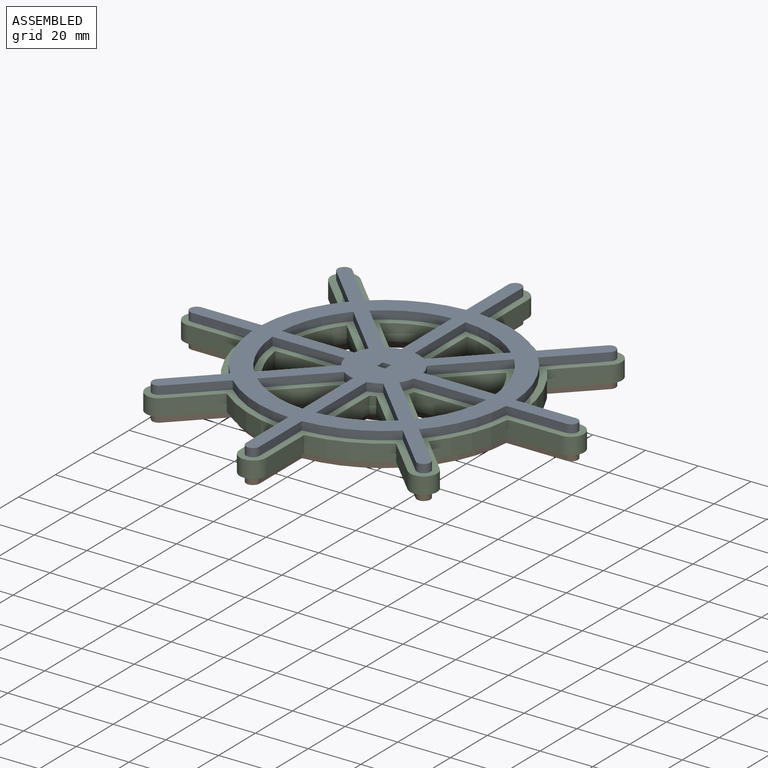
[diagram: assembled view]
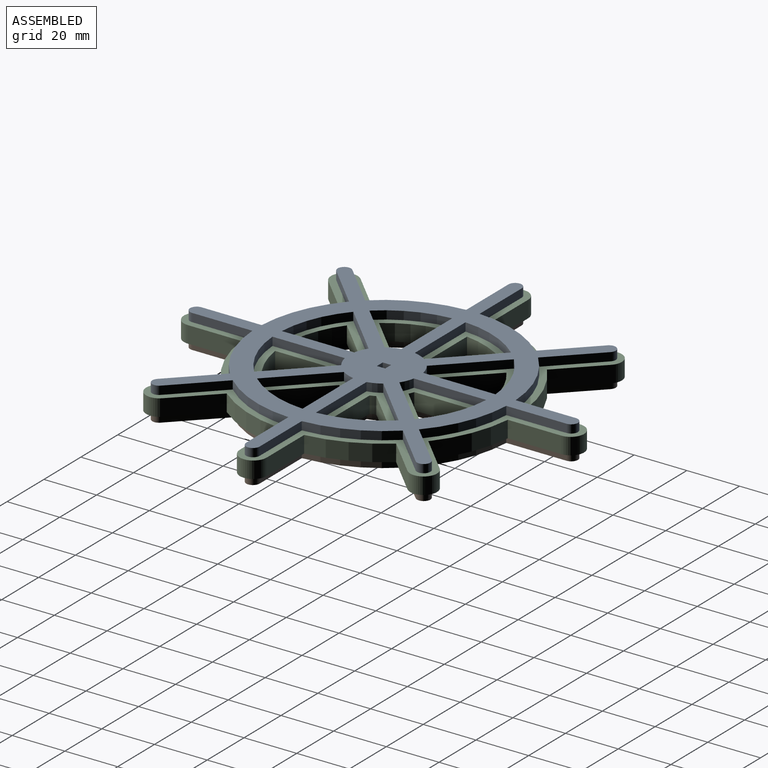
[diagram: assembled view, second angle]
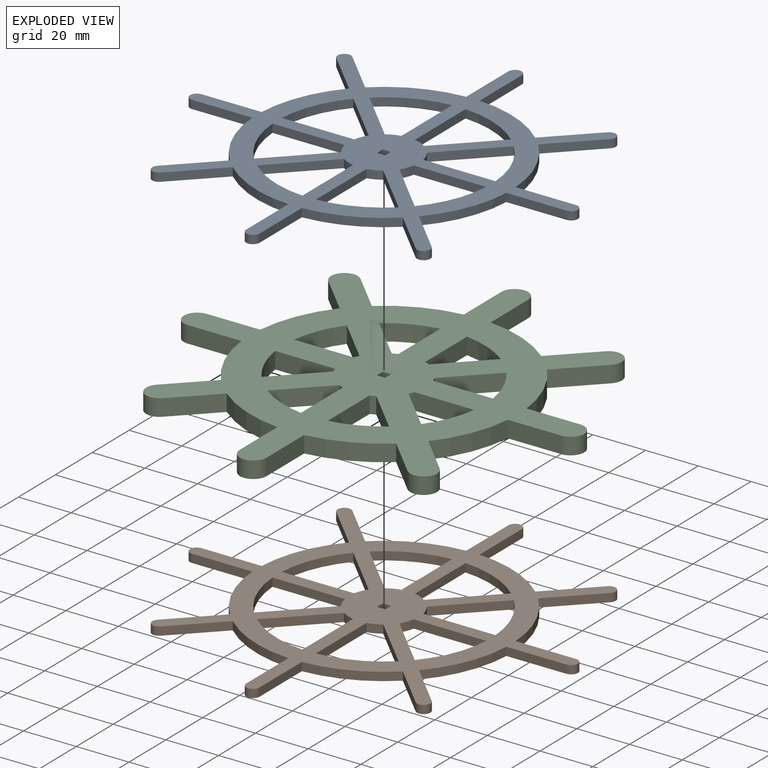
[diagram: exploded view]
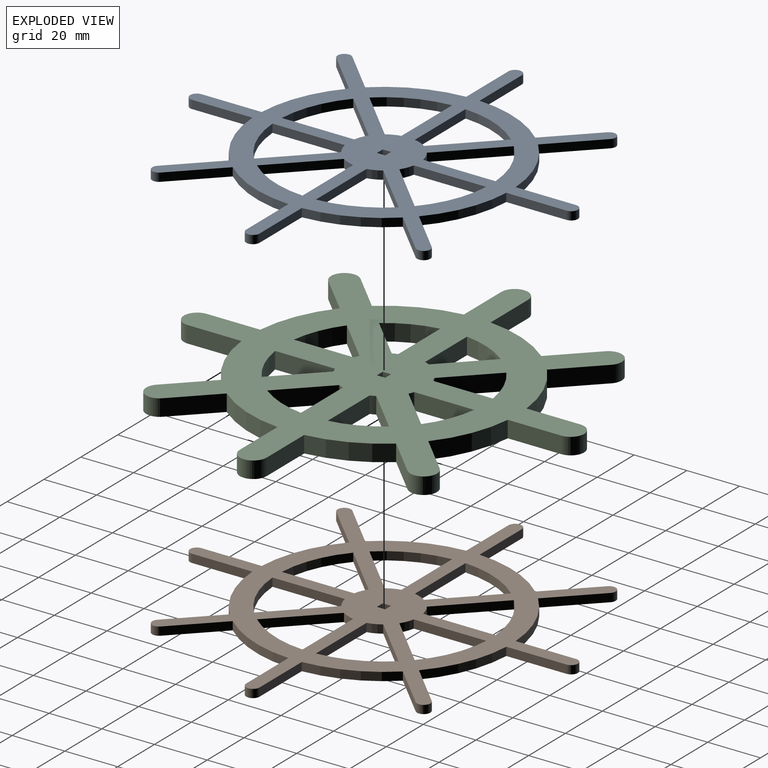
[diagram: exploded view, second angle]
ASSEMBLY  parts=3 mates=2
PART A: 70 faces, bbox 147.2x147.2x3.2 mm
  f0: plane 3.18x3.18mm, normal (-1,0,0), area 10.1mm2, adj f1,f67,f68,f69
  f1: plane 3.18x3.18mm, normal (0,1,0), area 10.1mm2, adj f0,f2,f68,f69
  f2: plane 3.18x3.18mm, normal (1,0,0), area 10.1mm2, adj f1,f67,f68,f69
  f3: cylinder r=40.64mm len=24.34mm, axis (0,0,-1), area 85.2mm2, adj f4,f58,f68,f69
  f4: plane 19.42x19.42mm, normal (0.71,0.71,0), area 87.2mm2, adj f3,f5,f68,f69
  f5: cylinder r=13.33mm len=4.92mm, axis (0,0,-1), area 17mm2, adj f4,f58,f68,f69
  f6: cylinder r=40.64mm len=24.34mm, axis (0,0,-1), area 85.2mm2, adj f7,f59,f68,f69
  f7: plane 27.47x3.18mm, normal (1,0,0), area 87.2mm2, adj f6,f8,f68,f69
  f8: cylinder r=13.33mm len=4.92mm, axis (0,0,-1), area 17mm2, adj f7,f59,f68,f69
  f9: cylinder r=40.64mm len=24.34mm, axis (0,0,-1), area 85.2mm2, adj f10,f60,f68,f69
  f10: plane 19.42x19.42mm, normal (0.71,-0.71,0), area 87.2mm2, adj f9,f11,f68,f69
  f11: cylinder r=13.33mm len=4.92mm, axis (0,0,-1), area 17mm2, adj f10,f60,f68,f69
  f12: cylinder r=40.64mm len=24.34mm, axis (0,0,-1), area 85.2mm2, adj f13,f61,f68,f69
  f13: plane 27.47x3.18mm, normal (0,-1,0), area 87.2mm2, adj f12,f14,f68,f69
  f14: cylinder r=13.33mm len=4.92mm, axis (0,0,-1), area 17mm2, adj f13,f61,f68,f69
  f15: cylinder r=40.64mm len=24.34mm, axis (0,0,-1), area 85.2mm2, adj f16,f62,f68,f69
  f16: plane 19.42x19.42mm, normal (-0.71,-0.71,0), area 87.2mm2, adj f15,f17,f68,f69
  f17: cylinder r=13.33mm len=4.92mm, axis (0,0,-1), area 17mm2, adj f16,f62,f68,f69
  f18: cylinder r=40.64mm len=24.34mm, axis (0,0,-1), area 85.2mm2, adj f19,f63,f68,f69
  f19: plane 27.47x3.18mm, normal (-1,0,0), area 87.2mm2, adj f18,f20,f68,f69
  f20: cylinder r=13.33mm len=4.92mm, axis (0,0,-1), area 17mm2, adj f19,f63,f68,f69
  f21: cylinder r=40.64mm len=24.34mm, axis (0,0,-1), area 85.2mm2, adj f22,f64,f68,f69
  f22: plane 19.42x19.42mm, normal (-0.71,0.71,0), area 87.2mm2, adj f21,f23,f68,f69
  f23: cylinder r=13.33mm len=4.92mm, axis (0,0,-1), area 17mm2, adj f22,f64,f68,f69
  f24: cylinder r=40.64mm len=24.34mm, axis (0,0,-1), area 85.2mm2, adj f25,f65,f68,f69
  f25: plane 27.47x3.18mm, normal (0,1,0), area 87.2mm2, adj f24,f26,f68,f69
  f26: cylinder r=13.33mm len=4.92mm, axis (0,0,-1), area 17mm2, adj f25,f65,f68,f69
  f27: plane 16.16x16.16mm, normal (-0.71,0.71,0), area 72.6mm2, adj f28,f66,f68,f69
  f28: cylinder r=48.26mm len=29.74mm, axis (0,0,-1), area 104.2mm2, adj f27,f29,f68,f69
  f29: plane 22.86x3.18mm, normal (1,0,0), area 72.6mm2, adj f28,f30,f68,f69
  f30: cylinder r=2.54mm len=5.08mm, axis (0,0,-1), area 25.3mm2, adj f29,f31,f68,f69
  f31: plane 22.86x3.18mm, normal (-1,0,0), area 72.6mm2, adj f30,f32,f68,f69
  f32: cylinder r=48.26mm len=29.74mm, axis (0,0,-1), area 104.2mm2, adj f31,f33,f68,f69
  f33: plane 16.16x16.16mm, normal (0.71,0.71,0), area 72.6mm2, adj f32,f34,f68,f69
  f34: cylinder r=2.54mm len=4.34mm, axis (0,0,-1), area 25.3mm2, adj f33,f35,f68,f69
  f35: plane 16.16x16.16mm, normal (-0.71,-0.71,0), area 72.6mm2, adj f34,f36,f68,f69
  f36: cylinder r=48.26mm len=29.74mm, axis (0,0,-1), area 104.2mm2, adj f35,f37,f68,f69
  f37: plane 22.86x3.18mm, normal (0,1,0), area 72.6mm2, adj f36,f38,f68,f69
  f38: cylinder r=2.54mm len=5.08mm, axis (0,0,-1), area 25.3mm2, adj f37,f39,f68,f69
  f39: plane 22.86x3.18mm, normal (0,-1,0), area 72.6mm2, adj f38,f40,f68,f69
  f40: cylinder r=48.26mm len=29.74mm, axis (0,0,-1), area 104.2mm2, adj f39,f41,f68,f69
  f41: plane 16.16x16.16mm, normal (-0.71,0.71,0), area 72.6mm2, adj f40,f42,f68,f69
  f42: cylinder r=2.54mm len=4.34mm, axis (0,0,-1), area 25.3mm2, adj f41,f43,f68,f69
  f43: plane 16.16x16.16mm, normal (0.71,-0.71,0), area 72.6mm2, adj f42,f44,f68,f69
  f44: cylinder r=48.26mm len=29.74mm, axis (0,0,-1), area 104.2mm2, adj f43,f45,f68,f69
  f45: plane 22.86x3.18mm, normal (-1,0,0), area 72.6mm2, adj f44,f46,f68,f69
  f46: cylinder r=2.54mm len=5.08mm, axis (0,0,-1), area 25.3mm2, adj f45,f47,f68,f69
  f47: plane 22.86x3.18mm, normal (1,0,0), area 72.6mm2, adj f46,f48,f68,f69
  f48: cylinder r=48.26mm len=29.74mm, axis (0,0,-1), area 104.2mm2, adj f47,f49,f68,f69
  f49: plane 16.16x16.16mm, normal (-0.71,-0.71,0), area 72.6mm2, adj f48,f50,f68,f69
  f50: cylinder r=2.54mm len=4.34mm, axis (0,0,-1), area 25.3mm2, adj f49,f51,f68,f69
  f51: plane 16.16x16.16mm, normal (0.71,0.71,0), area 72.6mm2, adj f50,f52,f68,f69
  f52: cylinder r=48.26mm len=29.74mm, axis (0,0,-1), area 104.2mm2, adj f51,f53,f68,f69
  f53: plane 22.86x3.18mm, normal (0,-1,0), area 72.6mm2, adj f52,f54,f68,f69
  f54: cylinder r=2.54mm len=5.08mm, axis (0,0,-1), area 25.3mm2, adj f53,f55,f68,f69
  f55: plane 22.86x3.18mm, normal (0,1,0), area 72.6mm2, adj f54,f56,f68,f69
  f56: cylinder r=48.26mm len=29.74mm, axis (0,0,-1), area 104.2mm2, adj f55,f57,f68,f69
  f57: plane 16.16x16.16mm, normal (0.71,-0.71,0), area 72.6mm2, adj f56,f66,f68,f69
  f58: plane 27.47x3.18mm, normal (0,-1,0), area 87.2mm2, adj f3,f5,f68,f69
  f59: plane 19.42x19.42mm, normal (-0.71,-0.71,0), area 87.2mm2, adj f6,f8,f68,f69
  f60: plane 27.47x3.18mm, normal (-1,0,0), area 87.2mm2, adj f9,f11,f68,f69
  f61: plane 19.42x19.42mm, normal (-0.71,0.71,0), area 87.2mm2, adj f12,f14,f68,f69
  f62: plane 27.47x3.18mm, normal (0,1,0), area 87.2mm2, adj f15,f17,f68,f69
  f63: plane 19.42x19.42mm, normal (0.71,0.71,0), area 87.2mm2, adj f18,f20,f68,f69
  f64: plane 27.47x3.18mm, normal (1,0,0), area 87.2mm2, adj f21,f23,f68,f69
  f65: plane 19.42x19.42mm, normal (0.71,-0.71,0), area 87.2mm2, adj f24,f26,f68,f69
  f66: cylinder r=2.54mm len=4.34mm, axis (0,0,-1), area 25.3mm2, adj f27,f57,f68,f69
  f67: plane 3.18x3.18mm, normal (0,-1,0), area 10.1mm2, adj f0,f2,f68,f69
  f68: plane 147.19x147.19mm, normal (0,0,1), area 4796.9mm2, adj f0,f1,f2,f3,f4,f5,f6,f7
  f69: plane 147.19x147.19mm, normal (0,0,-1), area 4796.9mm2, adj f0,f1,f2,f3,f4,f5,f6,f7
PART B: same geometry as A
PART C: 70 faces, bbox 151.9x151.9x6.4 mm
  f0: plane 6.35x3.18mm, normal (-1,0,0), area 20.2mm2, adj f1,f67,f68,f69
  f1: plane 6.35x3.18mm, normal (0,1,0), area 20.2mm2, adj f0,f2,f68,f69
  f2: plane 6.35x3.18mm, normal (1,0,0), area 20.2mm2, adj f1,f67,f68,f69
  f3: cylinder r=38.1mm len=18.03mm, axis (0,0,-1), area 125.3mm2, adj f4,f58,f68,f69
  f4: plane 16.07x16.07mm, normal (0.71,0.71,0), area 144.3mm2, adj f3,f5,f68,f69
  f5: cylinder r=15.88mm len=6.35mm, axis (0,0,-1), area 13.5mm2, adj f4,f58,f68,f69
  f6: cylinder r=38.1mm len=18.03mm, axis (0,0,-1), area 125.3mm2, adj f7,f59,f68,f69
  f7: plane 22.72x6.35mm, normal (1,0,0), area 144.3mm2, adj f6,f8,f68,f69
  f8: cylinder r=15.88mm len=6.35mm, axis (0,0,-1), area 13.5mm2, adj f7,f59,f68,f69
  f9: cylinder r=38.1mm len=18.03mm, axis (0,0,-1), area 125.3mm2, adj f10,f60,f68,f69
  f10: plane 16.07x16.07mm, normal (0.71,-0.71,0), area 144.3mm2, adj f9,f11,f68,f69
  f11: cylinder r=15.88mm len=6.35mm, axis (0,0,-1), area 13.5mm2, adj f10,f60,f68,f69
  f12: cylinder r=38.1mm len=18.03mm, axis (0,0,-1), area 125.3mm2, adj f13,f61,f68,f69
  f13: plane 22.72x6.35mm, normal (0,-1,0), area 144.3mm2, adj f12,f14,f68,f69
  f14: cylinder r=15.88mm len=6.35mm, axis (0,0,-1), area 13.5mm2, adj f13,f61,f68,f69
  f15: cylinder r=38.1mm len=18.03mm, axis (0,0,-1), area 125.3mm2, adj f16,f62,f68,f69
  f16: plane 16.07x16.07mm, normal (-0.71,-0.71,0), area 144.3mm2, adj f15,f17,f68,f69
  f17: cylinder r=15.88mm len=6.35mm, axis (0,0,-1), area 13.5mm2, adj f16,f62,f68,f69
  f18: cylinder r=38.1mm len=18.03mm, axis (0,0,-1), area 125.3mm2, adj f19,f63,f68,f69
  f19: plane 22.72x6.35mm, normal (-1,0,0), area 144.3mm2, adj f18,f20,f68,f69
  f20: cylinder r=15.88mm len=6.35mm, axis (0,0,-1), area 13.5mm2, adj f19,f63,f68,f69
  f21: cylinder r=38.1mm len=18.03mm, axis (0,0,-1), area 125.3mm2, adj f22,f64,f68,f69
  f22: plane 16.07x16.07mm, normal (-0.71,0.71,0), area 144.3mm2, adj f21,f23,f68,f69
  f23: cylinder r=15.88mm len=6.35mm, axis (0,0,-1), area 13.5mm2, adj f22,f64,f68,f69
  f24: cylinder r=38.1mm len=18.03mm, axis (0,0,-1), area 125.3mm2, adj f25,f65,f68,f69
  f25: plane 22.72x6.35mm, normal (0,1,0), area 144.3mm2, adj f24,f26,f68,f69
  f26: cylinder r=15.88mm len=6.35mm, axis (0,0,-1), area 13.5mm2, adj f25,f65,f68,f69
  f27: plane 14.37x14.37mm, normal (-0.71,0.71,0), area 129mm2, adj f28,f66,f68,f69
  f28: cylinder r=50.8mm len=27.07mm, axis (0,0,-1), area 188.7mm2, adj f27,f29,f68,f69
  f29: plane 20.32x6.35mm, normal (1,0,0), area 129mm2, adj f28,f30,f68,f69
  f30: cylinder r=5.08mm len=10.16mm, axis (0,0,-1), area 101.3mm2, adj f29,f31,f68,f69
  f31: plane 20.32x6.35mm, normal (-1,0,0), area 129mm2, adj f30,f32,f68,f69
  f32: cylinder r=50.8mm len=27.07mm, axis (0,0,-1), area 188.7mm2, adj f31,f33,f68,f69
  f33: plane 14.37x14.37mm, normal (0.71,0.71,0), area 129mm2, adj f32,f34,f68,f69
  f34: cylinder r=5.08mm len=8.67mm, axis (0,0,-1), area 101.3mm2, adj f33,f35,f68,f69
  f35: plane 14.37x14.37mm, normal (-0.71,-0.71,0), area 129mm2, adj f34,f36,f68,f69
  f36: cylinder r=50.8mm len=27.07mm, axis (0,0,-1), area 188.7mm2, adj f35,f37,f68,f69
  f37: plane 20.32x6.35mm, normal (0,1,0), area 129mm2, adj f36,f38,f68,f69
  f38: cylinder r=5.08mm len=10.16mm, axis (0,0,-1), area 101.3mm2, adj f37,f39,f68,f69
  f39: plane 20.32x6.35mm, normal (0,-1,0), area 129mm2, adj f38,f40,f68,f69
  f40: cylinder r=50.8mm len=27.07mm, axis (0,0,-1), area 188.7mm2, adj f39,f41,f68,f69
  f41: plane 14.37x14.37mm, normal (-0.71,0.71,0), area 129mm2, adj f40,f42,f68,f69
  f42: cylinder r=5.08mm len=8.67mm, axis (0,0,-1), area 101.3mm2, adj f41,f43,f68,f69
  f43: plane 14.37x14.37mm, normal (0.71,-0.71,0), area 129mm2, adj f42,f44,f68,f69
  f44: cylinder r=50.8mm len=27.07mm, axis (0,0,-1), area 188.7mm2, adj f43,f45,f68,f69
  f45: plane 20.32x6.35mm, normal (-1,0,0), area 129mm2, adj f44,f46,f68,f69
  f46: cylinder r=5.08mm len=10.16mm, axis (0,0,-1), area 101.3mm2, adj f45,f47,f68,f69
  f47: plane 20.32x6.35mm, normal (1,0,0), area 129mm2, adj f46,f48,f68,f69
  f48: cylinder r=50.8mm len=27.07mm, axis (0,0,-1), area 188.7mm2, adj f47,f49,f68,f69
  f49: plane 14.37x14.37mm, normal (-0.71,-0.71,0), area 129mm2, adj f48,f50,f68,f69
  f50: cylinder r=5.08mm len=8.67mm, axis (0,0,-1), area 101.3mm2, adj f49,f51,f68,f69
  f51: plane 14.37x14.37mm, normal (0.71,0.71,0), area 129mm2, adj f50,f52,f68,f69
  f52: cylinder r=50.8mm len=27.07mm, axis (0,0,-1), area 188.7mm2, adj f51,f53,f68,f69
  f53: plane 20.32x6.35mm, normal (0,-1,0), area 129mm2, adj f52,f54,f68,f69
  f54: cylinder r=5.08mm len=10.16mm, axis (0,0,-1), area 101.3mm2, adj f53,f55,f68,f69
  f55: plane 20.32x6.35mm, normal (0,1,0), area 129mm2, adj f54,f56,f68,f69
  f56: cylinder r=50.8mm len=27.07mm, axis (0,0,-1), area 188.7mm2, adj f55,f57,f68,f69
  f57: plane 14.37x14.37mm, normal (0.71,-0.71,0), area 129mm2, adj f56,f66,f68,f69
  f58: plane 22.72x6.35mm, normal (0,-1,0), area 144.3mm2, adj f3,f5,f68,f69
  f59: plane 16.07x16.07mm, normal (-0.71,-0.71,0), area 144.3mm2, adj f6,f8,f68,f69
  f60: plane 22.72x6.35mm, normal (-1,0,0), area 144.3mm2, adj f9,f11,f68,f69
  f61: plane 16.07x16.07mm, normal (-0.71,0.71,0), area 144.3mm2, adj f12,f14,f68,f69
  f62: plane 22.72x6.35mm, normal (0,1,0), area 144.3mm2, adj f15,f17,f68,f69
  f63: plane 16.07x16.07mm, normal (0.71,0.71,0), area 144.3mm2, adj f18,f20,f68,f69
  f64: plane 22.72x6.35mm, normal (1,0,0), area 144.3mm2, adj f21,f23,f68,f69
  f65: plane 16.07x16.07mm, normal (0.71,-0.71,0), area 144.3mm2, adj f24,f26,f68,f69
  f66: cylinder r=5.08mm len=8.67mm, axis (0,0,-1), area 101.3mm2, adj f27,f57,f68,f69
  f67: plane 6.35x3.18mm, normal (0,-1,0), area 20.2mm2, adj f0,f2,f68,f69
  f68: plane 151.89x151.89mm, normal (0,0,1), area 8110.3mm2, adj f0,f1,f2,f3,f4,f5,f6,f7
  f69: plane 151.89x151.89mm, normal (0,0,-1), area 8110.3mm2, adj f0,f1,f2,f3,f4,f5,f6,f7
PLACE A t=(7.11,8.09,-27.02)mm
PLACE B t=(7.11,8.09,-36.55)mm
PLACE C rot(axis=(0,0,-1),90deg) t=(7.11,8.09,-33.37)mm
MATE fastened C.f69 <-> B.f68  axis (0,0,-1) through (8.7,8.09,-33.37)mm
MATE fastened C.f68 <-> A.f69  axis (0,0,1) through (8.7,8.09,-27.02)mm
